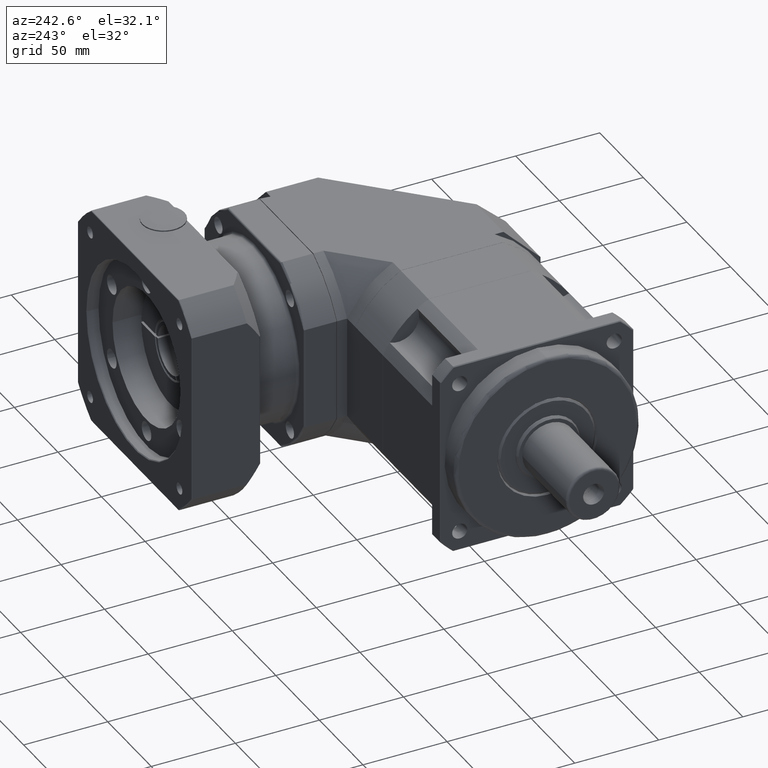
[diagram: clean part render]
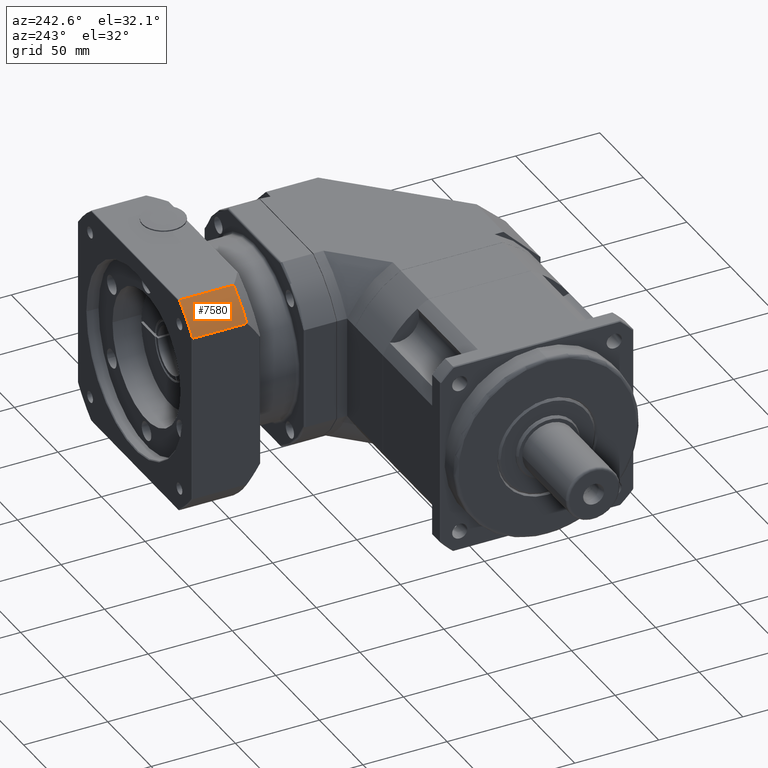
[diagram: same view with one face highlighted and labeled with its STEP entity id]
A machine part, auxiliary view. The second image highlights one B-rep face of the part: STEP entity #7580.
In plain terms, the highlighted cylindrical surface (partial cylindrical patch) has radius 82.5 mm, axis along (-0, -1, -0).
Its self-contained STEP definition (entity closure, byte-faithful):
#215=LINE('',#11555,#605);
#220=LINE('',#11797,#610);
#605=VECTOR('',#9259,32.2644831780048);
#610=VECTOR('',#9356,32.2644831780048);
#2037=FACE_OUTER_BOUND('',#2620,.T.);
#2620=EDGE_LOOP('',(#5552,#5553,#5554,#5555));
#3379=CIRCLE('',#8210,82.5);
#3390=CIRCLE('',#8226,82.5);
#3785=VERTEX_POINT('',#11552);
#3786=VERTEX_POINT('',#11554);
#3810=VERTEX_POINT('',#11666);
#3825=VERTEX_POINT('',#11795);
#4489=EDGE_CURVE('',#3785,#3786,#215,.T.);
#4514=EDGE_CURVE('',#3810,#3786,#3379,.T.);
#4533=EDGE_CURVE('',#3825,#3785,#3390,.T.);
#4534=EDGE_CURVE('',#3810,#3825,#220,.T.);
#5552=ORIENTED_EDGE('',*,*,#4514,.T.);
#5553=ORIENTED_EDGE('',*,*,#4489,.F.);
#5554=ORIENTED_EDGE('',*,*,#4533,.F.);
#5555=ORIENTED_EDGE('',*,*,#4534,.F.);
#7377=CYLINDRICAL_SURFACE('',#8225,82.5);
#7580=ADVANCED_FACE('',(#2037),#7377,.T.);
#8210=AXIS2_PLACEMENT_3D('',#11667,#9319,#9320);
#8225=AXIS2_PLACEMENT_3D('',#11794,#9352,#9353);
#8226=AXIS2_PLACEMENT_3D('',#11796,#9354,#9355);
#9259=DIRECTION('',(-6.96509818012538E-16,-1.,-3.13024502929046E-15));
#9319=DIRECTION('center_axis',(6.96509818012538E-16,1.,3.13024502929046E-15));
#9320=DIRECTION('ref_axis',(-7.55434362407991E-15,3.13024502929047E-15,
-1.));
#9352=DIRECTION('center_axis',(-6.96509818012538E-16,-1.,-3.13024502929046E-15));
#9353=DIRECTION('ref_axis',(-7.55434362407991E-15,3.13024502929047E-15,
-1.));
#9354=DIRECTION('center_axis',(6.96509818012538E-16,1.,3.13024502929046E-15));
#9355=DIRECTION('ref_axis',(-0.707106781186542,-1.72091067150712E-15,0.707106781186553));
#9356=DIRECTION('',(6.96509818012538E-16,1.,3.13024502929046E-15));
#11552=CARTESIAN_POINT('',(111.038801615686,123.956835803237,113.115721116422));
#11554=CARTESIAN_POINT('',(111.038801615686,91.6923526252323,113.115721116422));
#11555=CARTESIAN_POINT('',(111.038801615686,124.456835803237,113.115721116422));
#11666=CARTESIAN_POINT('',(95.6985464316233,91.6923526252323,97.7754659323601));
#11667=CARTESIAN_POINT('Origin',(161.198546431623,91.6923526252324,47.6157211164219));
#11794=CARTESIAN_POINT('Origin',(161.198546431623,124.456835803237,47.615721116422));
#11795=CARTESIAN_POINT('',(95.6985464316233,123.956835803237,97.7754659323602));
#11796=CARTESIAN_POINT('Origin',(161.198546431623,123.956835803237,47.615721116422));
#11797=CARTESIAN_POINT('',(95.6985464316233,124.456835803237,97.7754659323602));